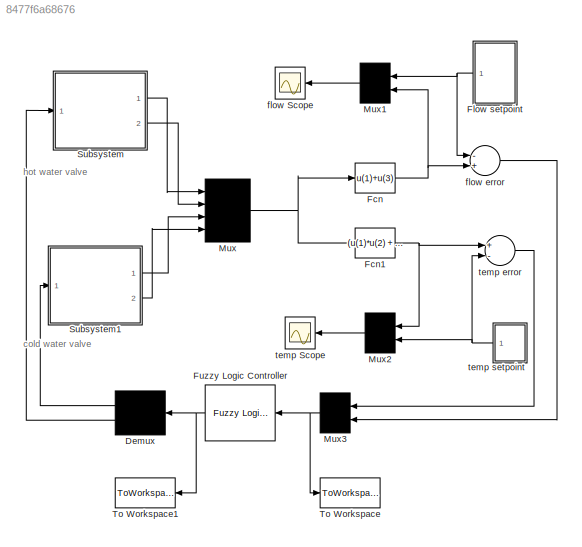
MODEL slx_8477f6a68676
KIND model
CONFIG AbsTol = auto
CONFIG EnableMultiTasking = on
CONFIG FixedStep = auto
CONFIG MaxStep = auto
CONFIG MinStep = auto
CONFIG RelTol = 1e-3
CONFIG SampleTimeConstraint = Unconstrained
CONFIG Solver = VariableStepAuto
CONFIG SolverName = VariableStepAuto
CONFIG StartTime = 0.0
CONFIG StopTime = 10.0
BLOCK [Demux] Demux
  Outputs = 2
  Ports = [1, 2]
BLOCK [Fcn] Fcn
  Expr = u(1)+u(3)
BLOCK [Fcn] Fcn1
  Expr = (u(1)*u(2) + u(3)*u(4))/(u(1)+u(3))
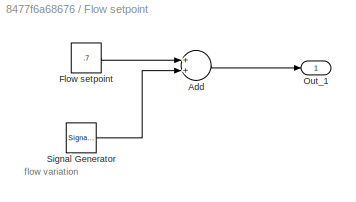
BLOCK [SubSystem] Flow setpoint 
  Ports = [0, 1]
  RequestExecContextInheritance = off
BLOCK [Sum] Flow setpoint /Add
  InputSameDT = off
  OutDataTypeStr = Inherit: Inherit via internal rule
  Ports = [2, 1]
  SaturateOnIntegerOverflow = off
BLOCK [Constant] Flow setpoint /Flow setpoint 
  Value = .7
BLOCK [Outport] Flow setpoint /Out_1
  IconDisplay = Port number
BLOCK [SignalGenerator] Flow setpoint /Signal Generator
  Amplitude = 0.200000
  Frequency = 0.300000
  Ports = [0, 1]
  Units = rad/sec
  WaveForm = square
BLOCK [Reference] Fuzzy Logic Controller  REF=fuzblock/Fuzzy Logic   (lib defined in mdl_858b3b3e7478)
Controller
  Ports = [1, 1]
  SourceBlock = fuzblock/Fuzzy Logic \nController
  SourceProductBaseCode = FL
  SourceProductName = Fuzzy Logic Toolbox
  SourceType = Fuzzy Inference System
BLOCK [Mux] Mux
  Ports = [4, 1]
BLOCK [Mux] Mux1
  Inputs = 2
  Ports = [2, 1]
BLOCK [Mux] Mux2
  Inputs = 2
  Ports = [2, 1]
BLOCK [Mux] Mux3
  Inputs = 2
  Ports = [2, 1]
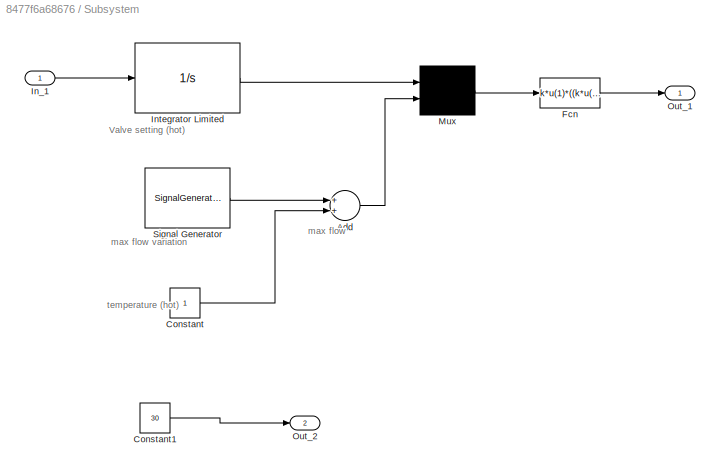
BLOCK [SubSystem] Subsystem
  Ports = [1, 2]
  RequestExecContextInheritance = off
BLOCK [Sum] Subsystem/Add
  InputSameDT = off
  OutDataTypeStr = Inherit: Inherit via internal rule
  Ports = [2, 1]
  SaturateOnIntegerOverflow = off
BLOCK [Constant] Subsystem/Constant
BLOCK [Constant] Subsystem/Constant1
  Value = 30
BLOCK [Fcn] Subsystem/Fcn
  Expr = k*u(1)*((k*u(1))<=u(2)) + u(2)*((k*u(1))>u(2))
BLOCK [Inport] Subsystem/In_1
  IconDisplay = Port number
BLOCK [Integrator] Subsystem/Integrator Limited
  InitialCondition = 0.1
  LimitOutput = on
  LowerSaturationLimit = 0.001
  Ports = [1, 1]
  UpperSaturationLimit = 2
BLOCK [Mux] Subsystem/Mux
  Inputs = 2
  Ports = [2, 1]
BLOCK [Outport] Subsystem/Out_1
  IconDisplay = Port number
BLOCK [Outport] Subsystem/Out_2
  IconDisplay = Port number
  Port = 2
BLOCK [SignalGenerator] Subsystem/Signal Generator
  Amplitude = 0.000000
  Frequency = 0.300000
  Ports = [0, 1]
  Units = rad/sec
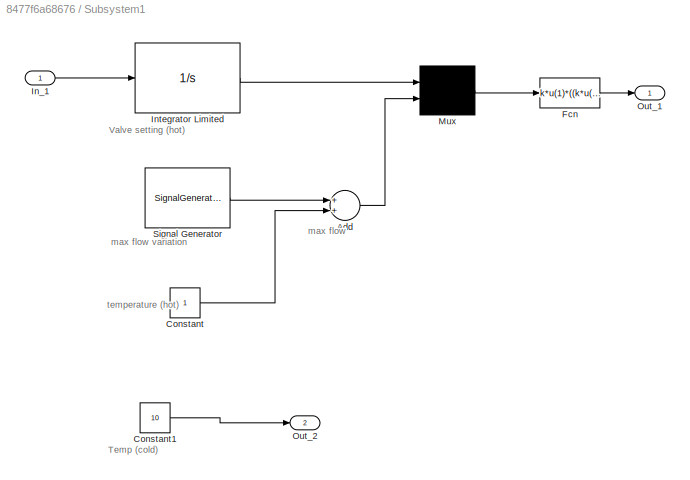
BLOCK [SubSystem] Subsystem1
  Ports = [1, 2]
  RequestExecContextInheritance = off
BLOCK [Sum] Subsystem1/Add
  InputSameDT = off
  OutDataTypeStr = Inherit: Inherit via internal rule
  Ports = [2, 1]
  SaturateOnIntegerOverflow = off
BLOCK [Constant] Subsystem1/Constant
BLOCK [Constant] Subsystem1/Constant1
  Value = 10
BLOCK [Fcn] Subsystem1/Fcn
  Expr = k*u(1)*((k*u(1))<=u(2)) + u(2)*((k*u(1))>u(2))
BLOCK [Inport] Subsystem1/In_1
  IconDisplay = Port number
BLOCK [Integrator] Subsystem1/Integrator Limited
  InitialCondition = 0.1
  LimitOutput = on
  LowerSaturationLimit = 0.001
  Ports = [1, 1]
  UpperSaturationLimit = 2
BLOCK [Mux] Subsystem1/Mux
  Inputs = 2
  Ports = [2, 1]
BLOCK [Outport] Subsystem1/Out_1
  IconDisplay = Port number
BLOCK [Outport] Subsystem1/Out_2
  IconDisplay = Port number
  Port = 2
BLOCK [SignalGenerator] Subsystem1/Signal Generator
  Amplitude = 0.000000
  Frequency = 0.101325
  Ports = [0, 1]
  Units = rad/sec
BLOCK [ToWorkspace] To Workspace
  Ports = [1]
  Save2DSignal = 3-D array (concatenate along third dimension)
  VariableName = in
BLOCK [ToWorkspace] To Workspace1
  Ports = [1]
  Save2DSignal = 3-D array (concatenate along third dimension)
  VariableName = out
BLOCK [Scope] flow Scope
  Floating = off
  NumInputPorts = 1
  Ports = [1]
  ScopeSpecificationString = Simulink.scopes.TimeScopeBlockCfg('CurrentConfiguration', extmgr.ConfigurationSet(extmgr.Configuration('Core','General UI',true),extmgr.Configuration('Core','Source UI',true),extmgr.Configuration('Sources','WiredSimulink',true),extmgr.Configuration('Visuals','Time Domain',true),extmgr.Configuration('Tools','Plot Navigation',true),extmgr.Configuration('Tools','Measurements',true)),'Version','2018b'...<+1ch>
BLOCK [Sum] flow error 
  InputSameDT = off
  Inputs = -+
  OutDataTypeStr = Inherit: Inherit via internal rule
  Ports = [2, 1]
  SaturateOnIntegerOverflow = off
BLOCK [Scope] temp Scope
  Floating = off
  NumInputPorts = 1
  Ports = [1]
  ScopeSpecificationString = Simulink.scopes.TimeScopeBlockCfg('CurrentConfiguration', extmgr.ConfigurationSet(extmgr.Configuration('Core','General UI',true),extmgr.Configuration('Core','Source UI',true),extmgr.Configuration('Sources','WiredSimulink',true,'DataLoggingVariableName','ScopeData1'),extmgr.Configuration('Visuals','Time Domain',true),extmgr.Configuration('Tools','Plot Navigation',true),extmgr.Configuration('Tools',...<+40ch>
BLOCK [Sum] temp error 
  InputSameDT = off
  Inputs = +-
  OutDataTypeStr = Inherit: Inherit via internal rule
  Ports = [2, 1]
  SaturateOnIntegerOverflow = off
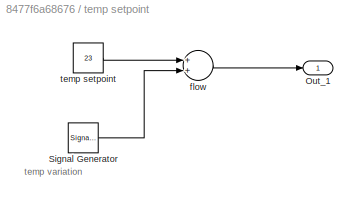
BLOCK [SubSystem] temp setpoint 
  Ports = [0, 1]
  RequestExecContextInheritance = off
BLOCK [Outport] temp setpoint /Out_1
  IconDisplay = Port number
BLOCK [SignalGenerator] temp setpoint /Signal Generator
  Amplitude = 4.000000
  Frequency = 0.214320
  Ports = [0, 1]
  Units = rad/sec
  WaveForm = square
BLOCK [Sum] temp setpoint /flow
  InputSameDT = off
  OutDataTypeStr = Inherit: Inherit via internal rule
  Ports = [2, 1]
  SaturateOnIntegerOverflow = off
BLOCK [Constant] temp setpoint /temp setpoint 
  Value = 23
ANNOTATION (root): cold water valve
ANNOTATION (root): hot water valve
ANNOTATION Flow setpoint : flow variation
ANNOTATION Subsystem: Valve setting (hot)
ANNOTATION Subsystem: max flow
ANNOTATION Subsystem: max flow variation
ANNOTATION Subsystem: temperature (hot)
ANNOTATION Subsystem1: Temp (cold)
ANNOTATION Subsystem1: Valve setting (hot)
ANNOTATION Subsystem1: max flow
ANNOTATION Subsystem1: max flow variation
ANNOTATION Subsystem1: temperature (hot)
ANNOTATION temp setpoint : temp variation
LINE Demux:1 -> Subsystem1:1
LINE Demux:2 -> Subsystem:1
NET Fcn1:1 -> Mux2:1, temp error :1
NET Fcn:1 -> Mux1:2, flow error :2
LINE Flow setpoint /Add:1 -> Flow setpoint /Out_1:1
LINE Flow setpoint /Flow setpoint :1 -> Flow setpoint /Add:1
LINE Flow setpoint /Signal Generator:1 -> Flow setpoint /Add:2
NET Flow setpoint :1 -> Mux1:1, flow error :1
NET Fuzzy Logic Controller:1 -> Demux:1, To Workspace1:1
LINE Mux1:1 -> flow Scope:1
LINE Mux2:1 -> temp Scope:1
NET Mux3:1 -> Fuzzy Logic Controller:1, To Workspace:1
NET Mux:1 -> Fcn1:1, Fcn:1
LINE Subsystem/Add:1 -> Subsystem/Mux:2
LINE Subsystem/Constant1:1 -> Subsystem/Out_2:1
LINE Subsystem/Constant:1 -> Subsystem/Add:2
LINE Subsystem/Fcn:1 -> Subsystem/Out_1:1
LINE Subsystem/In_1:1 -> Subsystem/Integrator Limited:1
LINE Subsystem/Integrator Limited:1 -> Subsystem/Mux:1
LINE Subsystem/Mux:1 -> Subsystem/Fcn:1
LINE Subsystem/Signal Generator:1 -> Subsystem/Add:1
LINE Subsystem1/Add:1 -> Subsystem1/Mux:2
LINE Subsystem1/Constant1:1 -> Subsystem1/Out_2:1
LINE Subsystem1/Constant:1 -> Subsystem1/Add:2
LINE Subsystem1/Fcn:1 -> Subsystem1/Out_1:1
LINE Subsystem1/In_1:1 -> Subsystem1/Integrator Limited:1
LINE Subsystem1/Integrator Limited:1 -> Subsystem1/Mux:1
LINE Subsystem1/Mux:1 -> Subsystem1/Fcn:1
LINE Subsystem1/Signal Generator:1 -> Subsystem1/Add:1
LINE Subsystem1:1 -> Mux:3
LINE Subsystem1:2 -> Mux:4
LINE Subsystem:1 -> Mux:1
LINE Subsystem:2 -> Mux:2
LINE flow error :1 -> Mux3:2
LINE temp error :1 -> Mux3:1
LINE temp setpoint /Signal Generator:1 -> temp setpoint /flow:2
LINE temp setpoint /flow:1 -> temp setpoint /Out_1:1
LINE temp setpoint /temp setpoint :1 -> temp setpoint /flow:1
NET temp setpoint :1 -> Mux2:2, temp error :2
note: NET lines group one-source signal fan-out (src -> all destinations, sorted); 1:1 wires keep LINE
